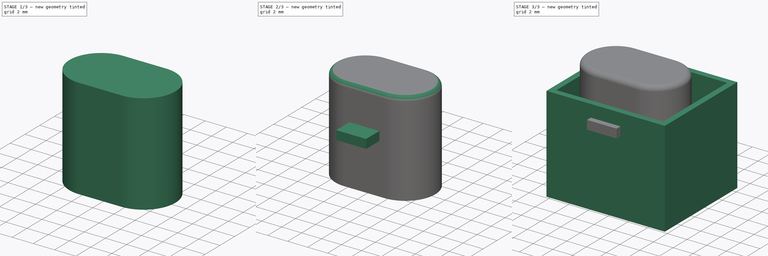
[diagram: build sequence overview — one tinted view per stage of 3, left to right]
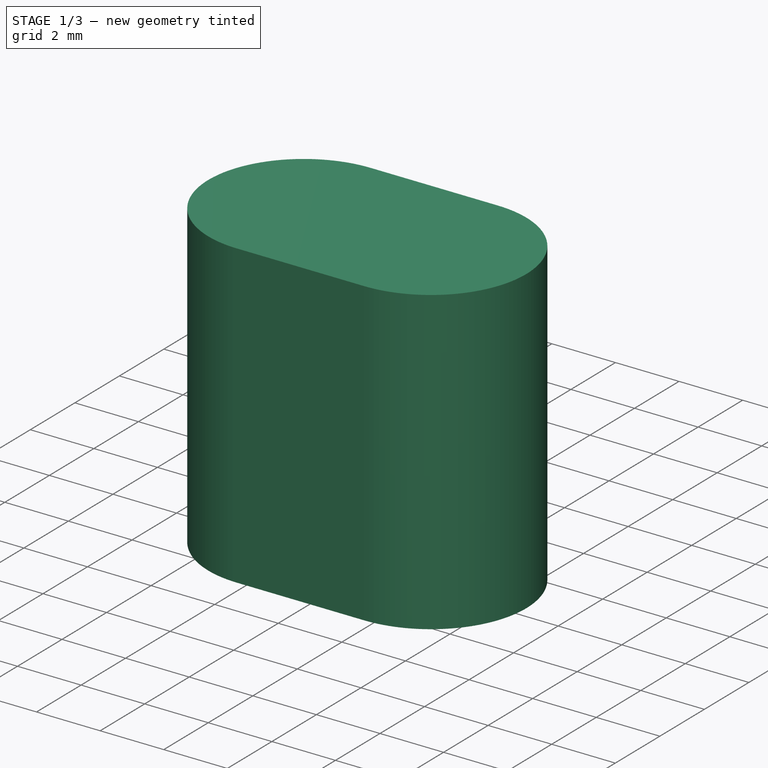
[diagram: stage 1 of 3 — iso view after this stage's code; geometry added in this stage tinted green]
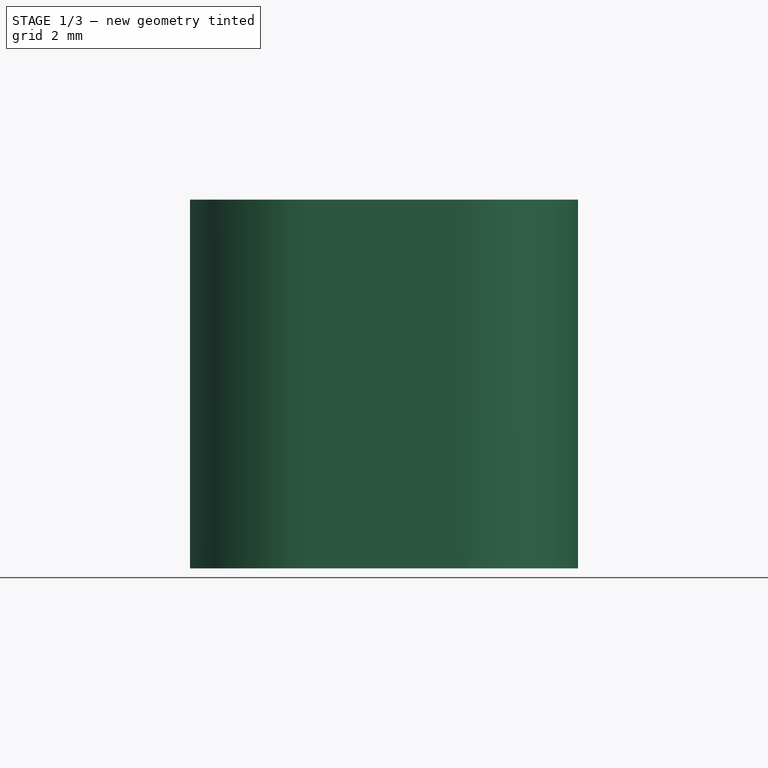
[diagram: stage 1 of 3 — front view after this stage's code; geometry added in this stage tinted green]
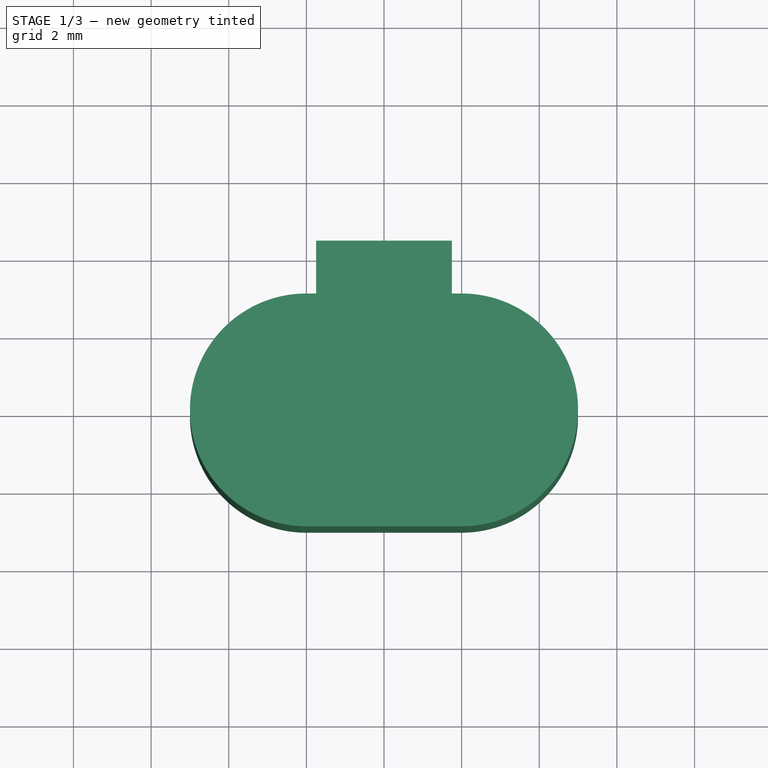
[diagram: stage 1 of 3 — top view after this stage's code; geometry added in this stage tinted green]
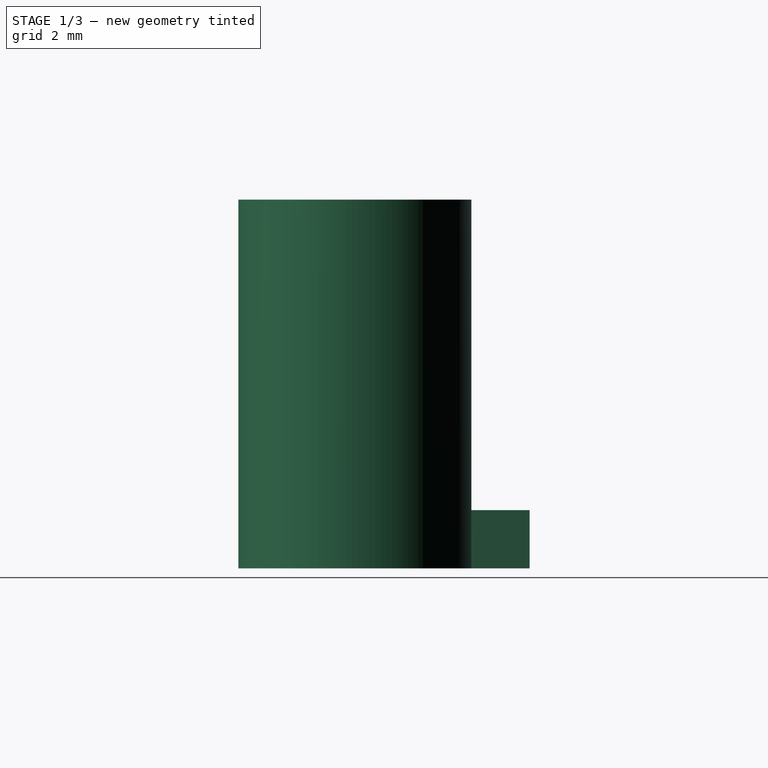
[diagram: stage 1 of 3 — right view after this stage's code; geometry added in this stage tinted green]
FCSTD DOCUMENT  (FreeCAD 0.18R16146 (Git))
Label: switch10x6rd
License: All rights reserved
LicenseURL: http://en.wikipedia.org/wiki/All_rights_reserved
objects: Sketcher::SketchObject×5, PartDesign::Pad×4, Part::Feature×2, PartDesign::Body×2, PartDesign::Fillet×2, PartDesign::Plane×1, PartDesign::Pocket×1
note: 22 computed .brp shape members not serialized (recipe doc carries the construction recipe); baked Part::Feature solids carry a one-line shape summary decoded from their .brp

FEATURE [PartDesign::Plane] DatumPlane
  Length = 24
  MapMode = 2
  Placement = pos=(0,0,10) rot=(0,0,1;0rad)
  ResizeMode = 0
  Width = 24
FEATURE [Sketcher::SketchObject] Sketch  label="StößelSkizze"
  MapMode = 5
  Placement = pos=(0,0,10) rot=(0,0,1;0rad)
  Support = -> [DatumPlane]
  sketch-geometry (6):
    g0: ArcOfCircle CenterX=-2 CenterY=1e-16 CenterZ=0 NormalX=0 NormalY=0 NormalZ=1 AngleXU=0 Radius=3 StartAngle=1.5708 EndAngle=4.71239
    g1: ArcOfCircle CenterX=2 CenterY=-1e-16 CenterZ=0 NormalX=0 NormalY=0 NormalZ=1 AngleXU=0 Radius=3 StartAngle=4.71239 EndAngle=7.85398
    g2: LineSegment StartX=-2 StartY=-3 StartZ=0 EndX=2 EndY=-3 EndZ=0
    g3: LineSegment StartX=-2 StartY=3 StartZ=0 EndX=2 EndY=3 EndZ=0
    g4: GeomPoint X=-5 Y=0 Z=0
    g5: GeomPoint X=5 Y=0 Z=0
  constraints (13):
    c: Tangent(g0,g3) = 1.5708
    c: Tangent(g0,g2) = -1.5708
    c: Tangent(g2,g1) = -1.5708
    c: Tangent(g3,g1) = 1.5708
    c: Horizontal(g2)
    c: Equal(g0,g1)
    c: Symmetric(g0,g1,g-1)
    c: DistanceY(g1,g1) = 6
    c: PointOnObject(g4,g0)
    c: PointOnObject(g5,g1)
    c: PointOnObject(g5,g-1)
    c: PointOnObject(g4,g-1)
    c: DistanceX(g4,g5) = 10
FEATURE [Part::Feature] Part__Feature  label="LED_WS2812_PLCC6_50x50mm_P16mm"
  Placement = pos=(0,-1,0) rot=(0,0,1;0rad)
  shape: bbox 5.4 x 5 x 1.85 mm, 94 faces (baked)
FEATURE [PartDesign::Pad] Pad  label="Körper"
  Length = 2
  Length2 = 7.5
  Placement = pos=(0,0,10) rot=(0,0,1;0rad)
  Profile = -> Sketch
  Reversed = true
  Type = 4
FEATURE [Part::Feature] Part__Feature001  label="SW_SPST_CK_RS282G05A3"
  Placement = pos=(0,3.6,0) rot=(0,0,1;0rad)
  shape: bbox 8 x 3.5 x 2.5 mm, 109 faces (baked)
FEATURE [Sketcher::SketchObject] Sketch001
  ExternalGeometry = -> [Pad]
  MapMode = 5
  Placement = pos=(-1e-15,3,10) rot=(0,0.707107,0.707107;3.14159rad)
  Support = -> [Pad]
  sketch-geometry (5):
    g0: LineSegment StartX=-1.75 StartY=-7.5 StartZ=0 EndX=-1.75 EndY=-6 EndZ=0
    g1: LineSegment StartX=-1.75 StartY=-6 StartZ=0 EndX=1.75 EndY=-6 EndZ=0
    g2: LineSegment StartX=1.75 StartY=-6 StartZ=0 EndX=1.75 EndY=-7.5 EndZ=0
    g3: LineSegment StartX=1.75 StartY=-7.5 StartZ=0 EndX=-1.75 EndY=-7.5 EndZ=0
    g4: GeomPoint X=0 Y=-6.75 Z=0
  constraints (13):
    c: Vertical(g0)
    c: Coincident(g0,g1)
    c: Horizontal(g1)
    c: Coincident(g1,g2)
    c: Vertical(g2)
    c: Coincident(g2,g3)
    c: Horizontal(g3)
    c: Coincident(g3,g0)
    c: DistanceY(g2,g2) = 1.5
    c: PointOnObject(g0,g-3)
    c: PointOnObject(g4,g-2)
    c: Symmetric(g0,g2,g4)
    c: DistanceX(g1,g1) = 3.5
FEATURE [PartDesign::Pad] Pad001  label="triggerpad"
  BaseFeature = -> Pad
  Length = 1.5
  Length2 = 100
  Placement = pos=(0,0,10) rot=(0,0,1;0rad)
  Profile = -> Sketch001
  Type = 0
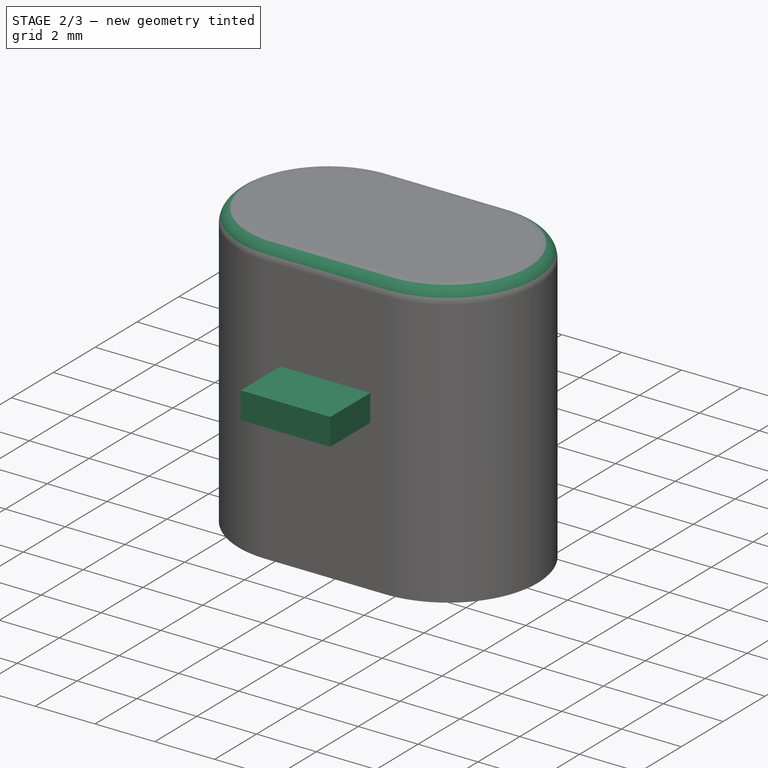
[diagram: stage 2 of 3 — iso view after this stage's code; geometry added in this stage tinted green]
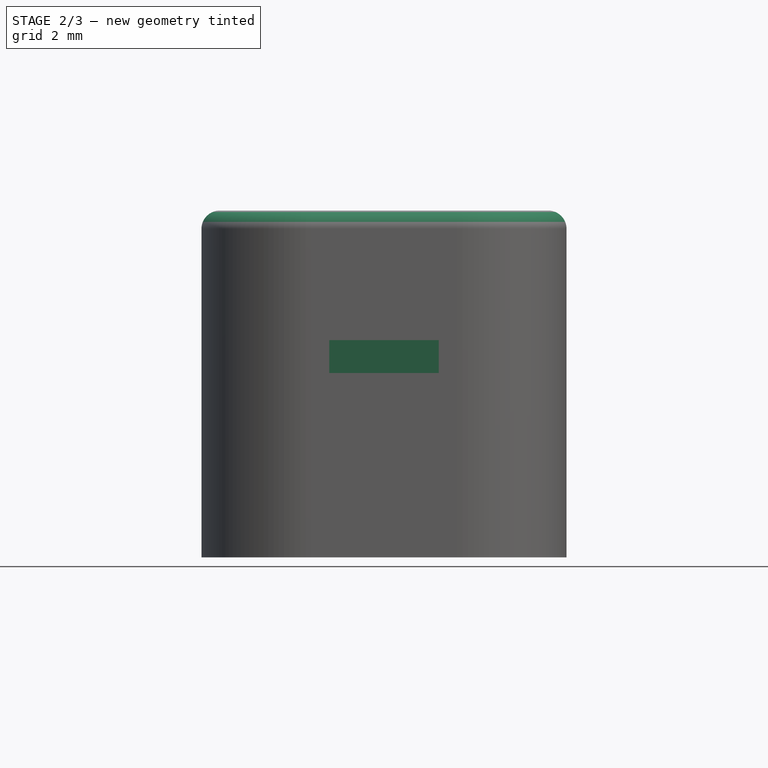
[diagram: stage 2 of 3 — front view after this stage's code; geometry added in this stage tinted green]
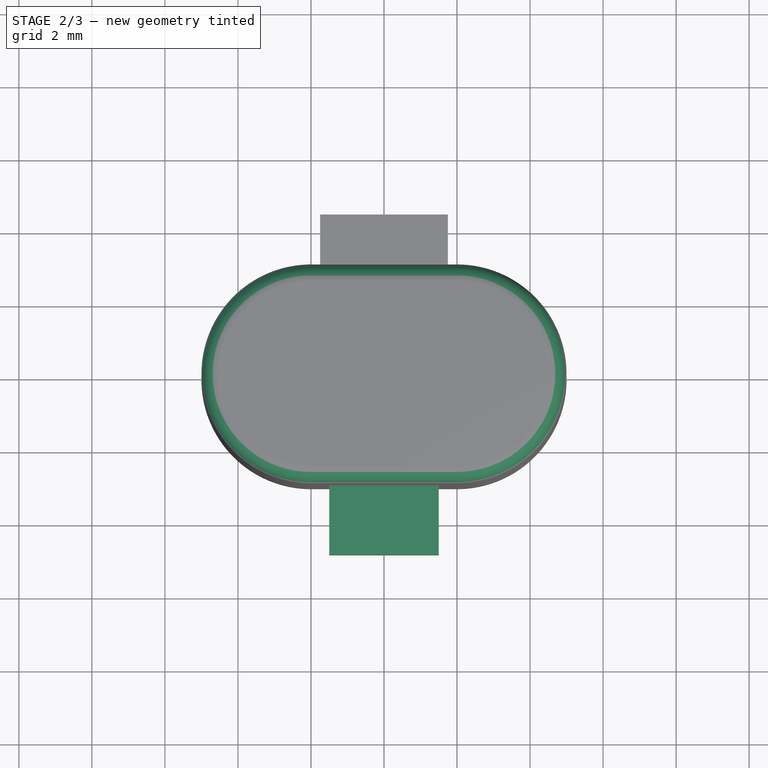
[diagram: stage 2 of 3 — top view after this stage's code; geometry added in this stage tinted green]
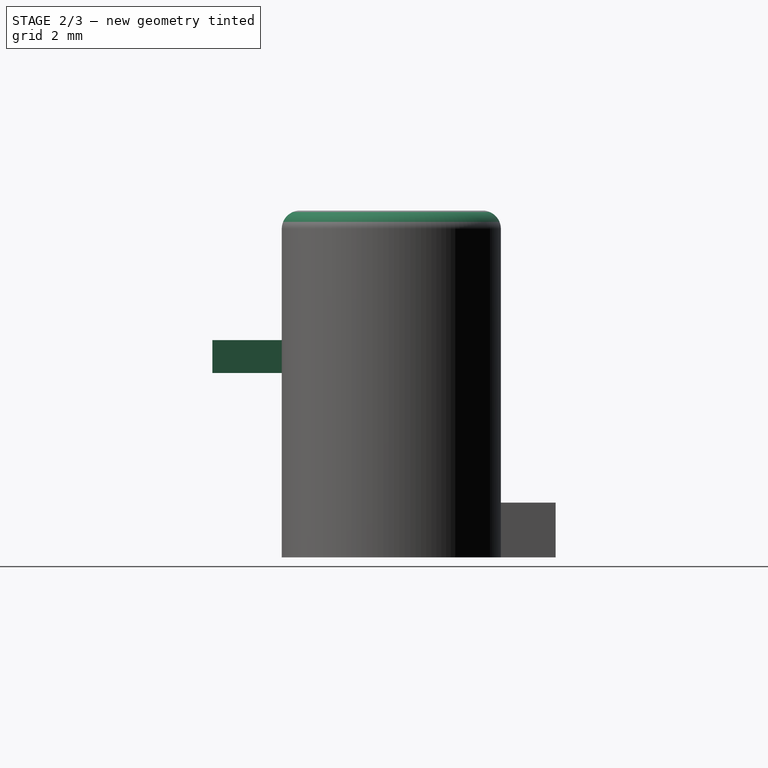
[diagram: stage 2 of 3 — right view after this stage's code; geometry added in this stage tinted green]
FEATURE [Sketcher::SketchObject] Sketch002
  ExternalGeometry = -> [Pad001]
  MapMode = 5
  Placement = pos=(0,0,2.5) rot=(1,0,0;3.14159rad)
  Support = -> [Pad001]
  sketch-geometry (6):
    g0: ArcOfCircle CenterX=-2 CenterY=0 CenterZ=0 NormalX=0 NormalY=0 NormalZ=1 AngleXU=0 Radius=2.4 StartAngle=1.5708 EndAngle=4.71239
    g1: ArcOfCircle CenterX=2 CenterY=0 CenterZ=0 NormalX=0 NormalY=0 NormalZ=1 AngleXU=0 Radius=2.4 StartAngle=4.71239 EndAngle=7.85398
    g2: LineSegment StartX=-2 StartY=-2.4 StartZ=0 EndX=2 EndY=-2.4 EndZ=0
    g3: LineSegment StartX=-2 StartY=2.4 StartZ=0 EndX=2 EndY=2.4 EndZ=0
    g4: LineSegment [constr] StartX=-2 StartY=2.4 StartZ=0 EndX=-2 EndY=3 EndZ=0
    g5: LineSegment [constr] StartX=-4.4 StartY=0 StartZ=0 EndX=-5 EndY=0 EndZ=0
  constraints (16):
    c: Tangent(g0,g3) = 1.5708
    c: Tangent(g0,g2) = -1.5708
    c: Tangent(g2,g1) = -1.5708
    c: Tangent(g3,g1) = 1.5708
    c: Horizontal(g2)
    c: Equal(g0,g1)
    c: Symmetric(g0,g1,g-1)
    c: Coincident(g4,g0)
    c: PointOnObject(g4,g-3)
    c: Vertical(g4)
    c: PointOnObject(g5,g0)
    c: Horizontal(g5)
    c: PointOnObject(g5,g-4)
    c: PointOnObject(g5,g-1)
    c: Equal(g4,g5)
    c: DistanceX(g5,g5) = 0.6
FEATURE [PartDesign::Pocket] Pocket  label="Vertiefung"
  BaseFeature = -> Pad001
  Length = 8
  Length2 = 100
  Placement = pos=(0,0,10) rot=(0,0,1;0rad)
  Profile = -> Sketch002
  Type = 0
FEATURE [Sketcher::SketchObject] Sketch003
  MapMode = 5
  Placement = pos=(0,-3,10) rot=(1,0,0;1.5708rad)
  Support = -> [Pocket]
  sketch-geometry (5):
    g0: LineSegment StartX=-1.5 StartY=-1.55 StartZ=0 EndX=1.5 EndY=-1.55 EndZ=0
    g1: LineSegment StartX=1.5 StartY=-1.55 StartZ=0 EndX=1.5 EndY=-2.45 EndZ=0
    g2: LineSegment StartX=1.5 StartY=-2.45 StartZ=0 EndX=-1.5 EndY=-2.45 EndZ=0
    g3: LineSegment StartX=-1.5 StartY=-2.45 StartZ=0 EndX=-1.5 EndY=-1.55 EndZ=0
    g4: GeomPoint X=0 Y=-2 Z=0
  constraints (13):
    c: Coincident(g0,g1)
    c: Coincident(g1,g2)
    c: Coincident(g2,g3)
    c: Coincident(g3,g0)
    c: Horizontal(g0)
    c: Horizontal(g2)
    c: Vertical(g1)
    c: Vertical(g3)
    c: DistanceY(g1,g1) = 0.9
    c: DistanceX(g0,g0) = 3
    c: PointOnObject(g4,g-2)
    c: Symmetric(g0,g1,g4)
    c: DistanceY(g4,g-1) = 2
FEATURE [PartDesign::Pad] Pad002
  BaseFeature = -> Pocket
  Length = 1.9
  Length2 = 100
  Placement = pos=(0,0,10) rot=(0,0,1;0rad)
  Profile = -> Sketch003
  Type = 0
FEATURE [PartDesign::Body] Body001  label="Frame"
  Group = -> [Sketch004,Pad003]
  Origin = -> Origin001
  Tip = -> Pad003
FEATURE [PartDesign::Fillet] Fillet
  Base = -> Pad002 [Edge13,Edge4,Edge11,Edge25]
  BaseFeature = -> Pad002
  Placement = pos=(0,0,10) rot=(0,0,1;0rad)
  Radius = 0.5
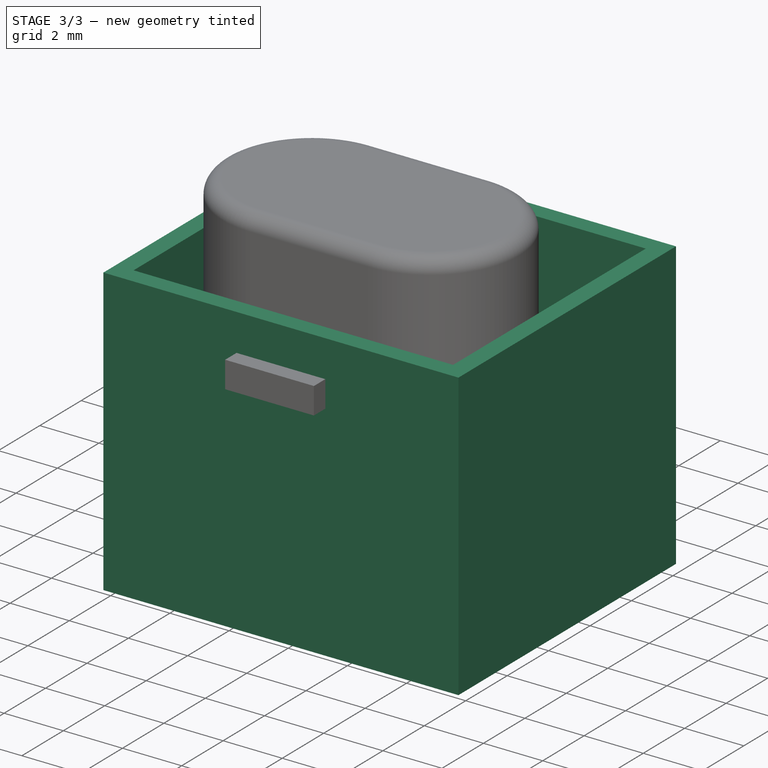
[diagram: stage 3 of 3 — iso view after this stage's code; geometry added in this stage tinted green]
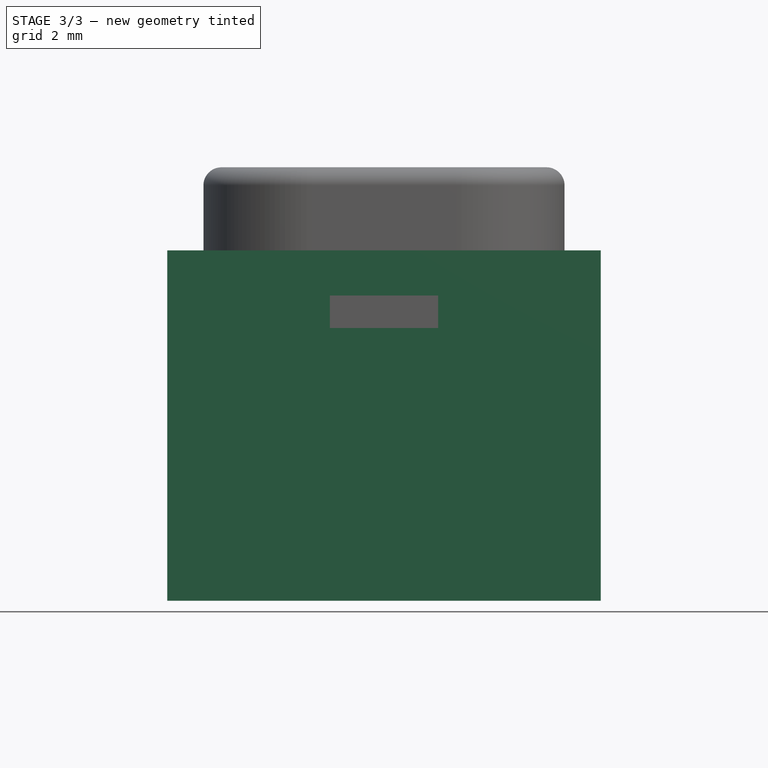
[diagram: stage 3 of 3 — front view after this stage's code; geometry added in this stage tinted green]
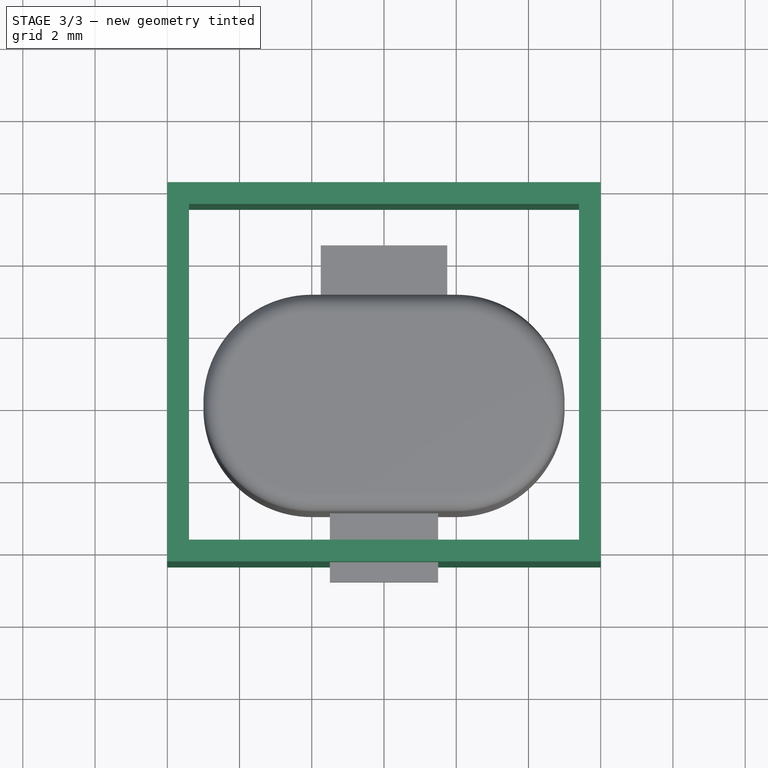
[diagram: stage 3 of 3 — top view after this stage's code; geometry added in this stage tinted green]
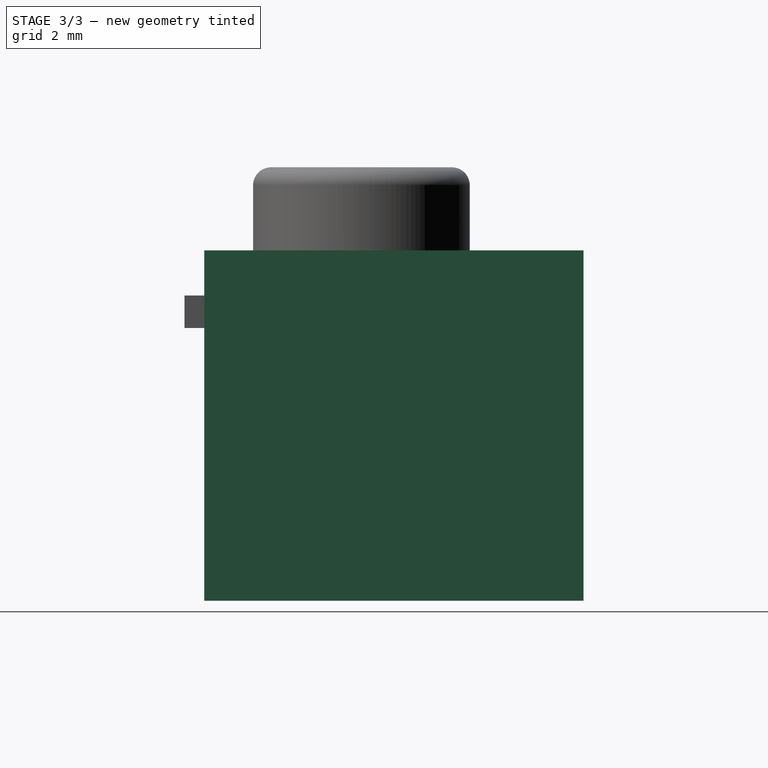
[diagram: stage 3 of 3 — right view after this stage's code; geometry added in this stage tinted green]
FEATURE [Sketcher::SketchObject] Sketch004
  MapMode = 5
  Support = -> [XY_Plane001]
  sketch-geometry (11):
    g0: LineSegment StartX=-5.4 StartY=5.55 StartZ=0 EndX=5.4 EndY=5.55 EndZ=0
    g1: LineSegment StartX=5.4 StartY=5.55 StartZ=0 EndX=5.4 EndY=-3.75 EndZ=0
    g2: LineSegment StartX=5.4 StartY=-3.75 StartZ=0 EndX=-5.4 EndY=-3.75 EndZ=0
    g3: LineSegment StartX=-5.4 StartY=-3.75 StartZ=0 EndX=-5.4 EndY=5.55 EndZ=0
    g4: GeomPoint X=0 Y=0.9 Z=0
    g5: LineSegment StartX=-6 StartY=6.15 StartZ=0 EndX=6 EndY=6.15 EndZ=0
    g6: LineSegment StartX=6 StartY=6.15 StartZ=0 EndX=6 EndY=-4.35 EndZ=0
    g7: LineSegment StartX=6 StartY=-4.35 StartZ=0 EndX=-6 EndY=-4.35 EndZ=0
    g8: LineSegment StartX=-6 StartY=-4.35 StartZ=0 EndX=-6 EndY=6.15 EndZ=0
    g9: LineSegment [constr] StartX=-5.4 StartY=5.55 StartZ=0 EndX=-6 EndY=5.55 EndZ=0
    g10: LineSegment [constr] StartX=-5.4 StartY=5.55 StartZ=0 EndX=-5.4 EndY=6.15 EndZ=0
  constraints (30):
    c: Coincident(g0,g1)
    c: Coincident(g1,g2)
    c: Coincident(g2,g3)
    c: Coincident(g3,g0)
    c: Horizontal(g0)
    c: Horizontal(g2)
    c: Vertical(g1)
    c: Vertical(g3)
    c: PointOnObject(g4,g-2)
    c: Symmetric(g0,g1,g4)
    c: DistanceY(g1,g1) = 9.3
    c: DistanceX(g2,g2) = 10.8
    c: DistanceY(g-1,g4) = 0.9
    c: Coincident(g5,g6)
    c: Coincident(g6,g7)
    c: Coincident(g7,g8)
    c: Coincident(g8,g5)
    c: Horizontal(g5)
    c: Horizontal(g7)
    c: Vertical(g6)
    c: Vertical(g8)
    c: Symmetric(g5,g6,g4)
    c: Coincident(g9,g0)
    c: PointOnObject(g9,g8)
    c: Horizontal(g9)
    c: Coincident(g10,g0)
    c: PointOnObject(g10,g5)
    c: Vertical(g10)
    c: Equal(g10,g9)
    c: DistanceX(g9,g9) = 0.6
FEATURE [PartDesign::Pad] Pad003
  Length = 9.7
  Length2 = 100
  Profile = -> Sketch004
  Type = 0
FEATURE [PartDesign::Fillet] Fillet001
  Base = -> Fillet [Edge48,Edge49,Edge46,Edge44]
  BaseFeature = -> Fillet
  Placement = pos=(0,0,10) rot=(0,0,1;0rad)
  Radius = 0.4
FEATURE [PartDesign::Body] Body  label="Stößel"
  Group = -> [DatumPlane,Sketch,Pad,Sketch001,Pad001,Sketch002,Pocket,Sketch003,Pad002,Fillet,Fillet001]
  Origin = -> Origin
  Tip = -> Fillet001
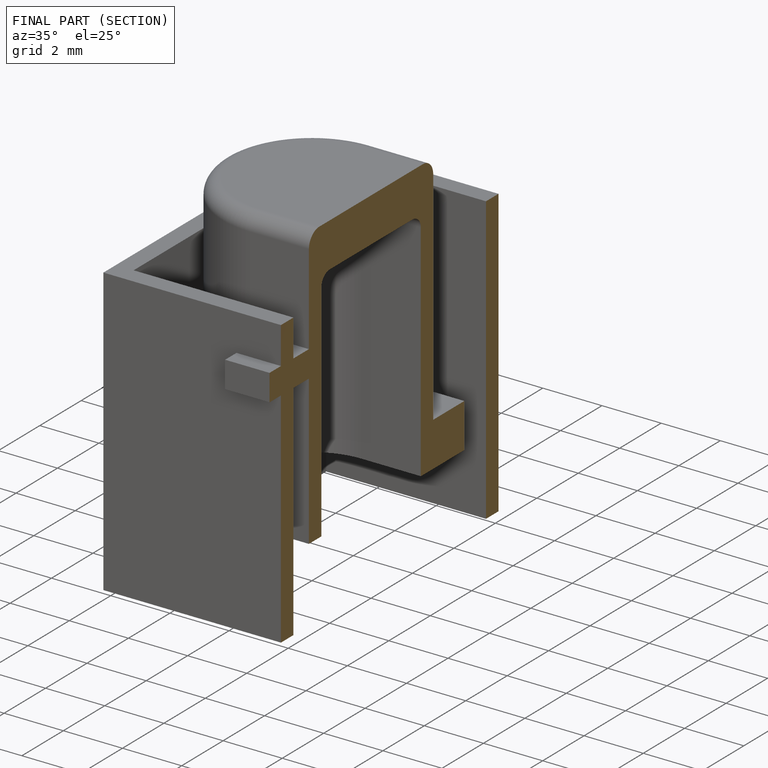
[diagram: finished part — half-section view (interior)]
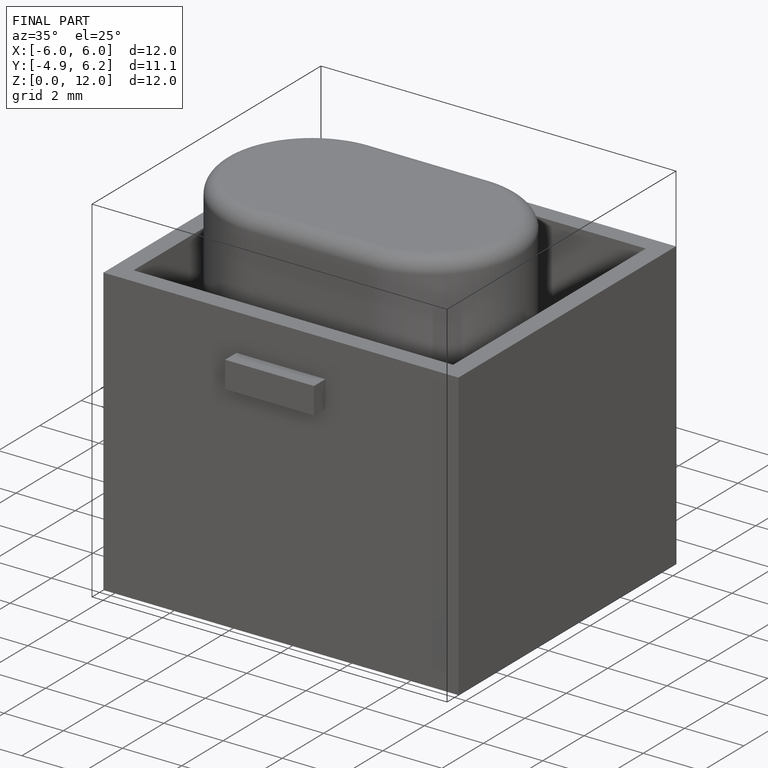
[diagram: finished part — iso view with bounding-box wireframe]
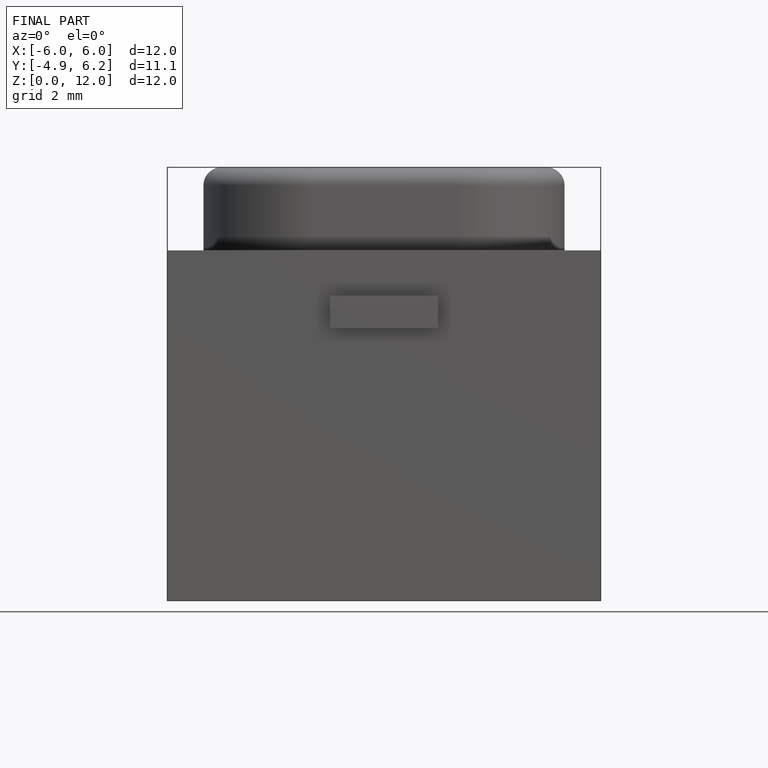
[diagram: finished part — front view with bounding-box wireframe]
